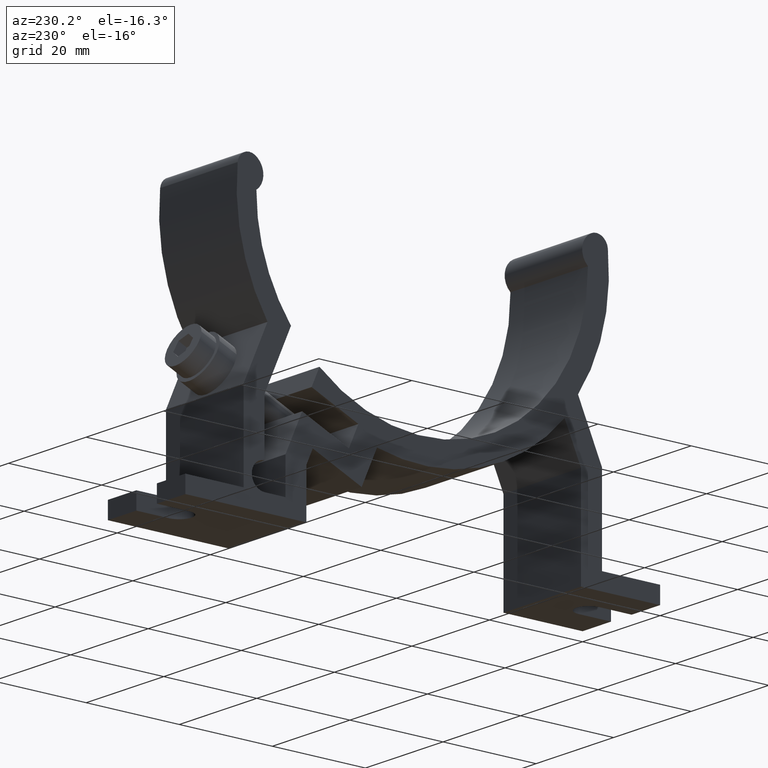
[diagram: clean part render]
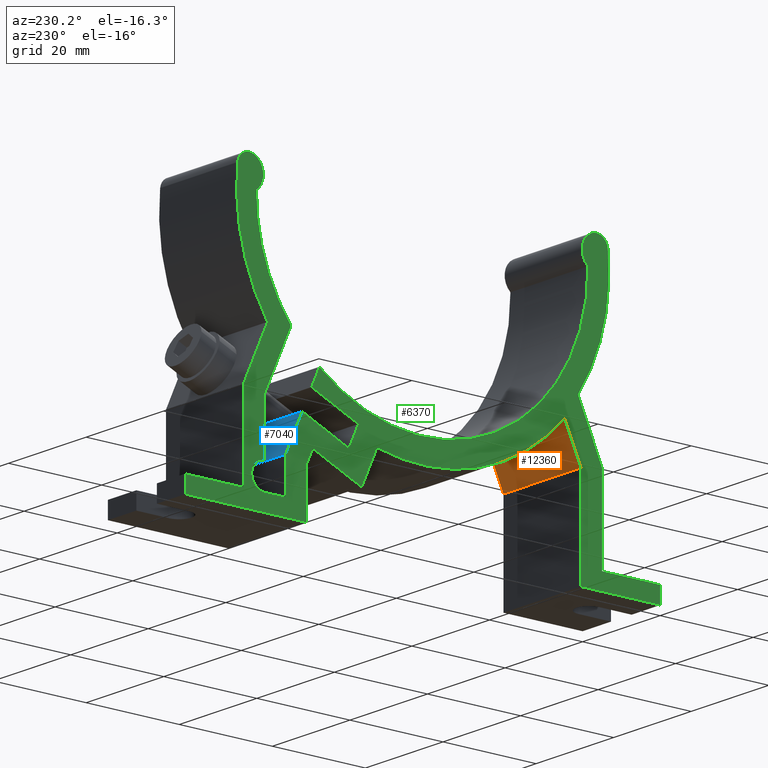
[diagram: same view with three faces highlighted in distinct colors, each labeled with its STEP entity id]
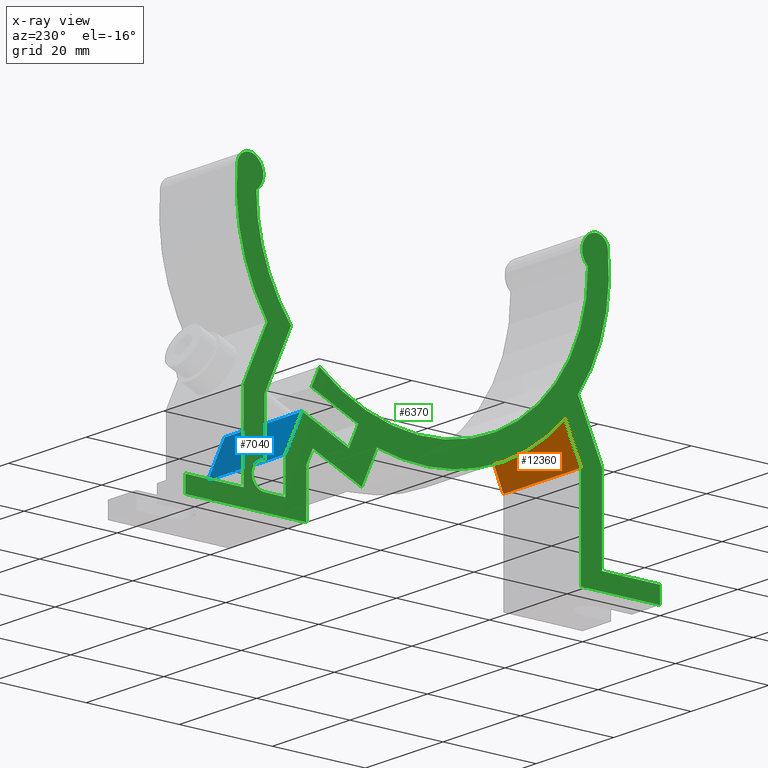
[diagram: x-ray of the same camera — body ghosted, the three highlighted faces saturated]
A machine part, auxiliary view with three faces highlighted in distinct colors.
The next image is the same camera in x-ray (body ghosted, the three faces saturated) — at least one of them is partly hidden behind the body in this view.
Their STEP definitions:

[orange] entity #12360 — the highlighted planar face has unit normal (0, -0.9135, 0.4067).
#4700=CARTESIAN_POINT('',(-34.,-34.5691636079813,0.1));
#4710=VERTEX_POINT('',#4700);
#4740=CARTESIAN_POINT('',(-18.6088167346028,0.,0.1));
#4750=DIRECTION('',(-0.4067366430758,-0.913545457642601,0.));
#4760=VECTOR('',#4750,1.);
#4770=LINE('',#4740,#4760);
#4780=CARTESIAN_POINT('',(-30.4816484383309,-26.6668166169492,0.1));
#4790=VERTEX_POINT('',#4780);
#4800=EDGE_CURVE('',#4790,#4710,#4770,.T.);
#7220=CARTESIAN_POINT('',(-34.,-34.5691636079813,20.1));
#7230=VERTEX_POINT('',#7220);
#7260=CARTESIAN_POINT('',(-34.,-34.5691636079813,0.));
#7270=DIRECTION('',(0.,0.,-1.));
#7280=VECTOR('',#7270,1.);
#7290=LINE('',#7260,#7280);
#7300=EDGE_CURVE('',#7230,#4710,#7290,.T.);
#9830=CARTESIAN_POINT('',(-30.4816484383309,-26.6668166169492,20.1));
#9840=VERTEX_POINT('',#9830);
#9870=CARTESIAN_POINT('',(-18.6088167346028,0.,20.1));
#9880=DIRECTION('',(0.4067366430758,0.913545457642601,0.));
#9890=VECTOR('',#9880,1.);
#9900=LINE('',#9870,#9890);
#9910=EDGE_CURVE('',#7230,#9840,#9900,.T.);
#11360=CARTESIAN_POINT('',(-30.4816484383309,-26.6668166169492,20.1));
#11370=DIRECTION('',(0.,0.,-1.));
#11380=VECTOR('',#11370,1.);
#11390=LINE('',#11360,#11380);
#11400=EDGE_CURVE('',#9840,#4790,#11390,.T.);
#12250=CARTESIAN_POINT('',(-34.,-34.5691636079813,20.1));
#12260=DIRECTION('',(-0.913545457642601,0.4067366430758,0.));
#12270=DIRECTION('',(-0.4067366430758,-0.913545457642601,0.));
#12280=AXIS2_PLACEMENT_3D('',#12250,#12260,#12270);
#12290=PLANE('',#12280);
#12300=ORIENTED_EDGE('',*,*,#7300,.T.);
#12310=ORIENTED_EDGE('',*,*,#9910,.F.);
#12320=ORIENTED_EDGE('',*,*,#11400,.F.);
#12330=ORIENTED_EDGE('',*,*,#4800,.F.);
#12340=EDGE_LOOP('',(#12330,#12320,#12310,#12300));
#12350=FACE_OUTER_BOUND('',#12340,.T.);
#12360=ADVANCED_FACE('',(#12350),#12290,.F.);

[blue] entity #7040 — the highlighted planar face has unit normal (0, -0.9135, -0.4067).
#3830=CARTESIAN_POINT('',(29.5,-44.1307448100062,20.1));
#3840=VERTEX_POINT('',#3830);
#3870=CARTESIAN_POINT('',(29.5,-44.1307448100062,0.));
#3880=DIRECTION('',(0.,0.,-1.));
#3890=VECTOR('',#3880,1.);
#3900=LINE('',#3870,#3890);
#3910=CARTESIAN_POINT('',(29.5,-44.1307448100062,0.1));
#3920=VERTEX_POINT('',#3910);
#3930=EDGE_CURVE('',#3840,#3920,#3900,.T.);
#6120=CARTESIAN_POINT('',(9.8517265065544,0.,0.1));
#6130=DIRECTION('',(0.406736643075801,-0.913545457642601,0.));
#6140=VECTOR('',#6130,1.);
#6150=LINE('',#6120,#6140);
#6160=CARTESIAN_POINT('',(25.9149530925807,-36.0785976197709,0.1));
#6170=VERTEX_POINT('',#6160);
#6180=EDGE_CURVE('',#6170,#3920,#6150,.T.);
#6770=CARTESIAN_POINT('',(29.5,-44.1307448100062,20.1));
#6780=DIRECTION('',(-0.913545457642601,-0.406736643075801,0.));
#6790=DIRECTION('',(0.406736643075801,-0.913545457642601,0.));
#6800=AXIS2_PLACEMENT_3D('',#6770,#6780,#6790);
#6810=PLANE('',#6800);
#6820=ORIENTED_EDGE('',*,*,#6180,.F.);
#6830=ORIENTED_EDGE('',*,*,#3930,.T.);
#6840=CARTESIAN_POINT('',(9.8517265065544,0.,20.1));
#6850=DIRECTION('',(-0.406736643075801,0.913545457642601,0.));
#6860=VECTOR('',#6850,1.);
#6870=LINE('',#6840,#6860);
#6880=CARTESIAN_POINT('',(25.9149530925807,-36.0785976197709,20.1));
#6890=VERTEX_POINT('',#6880);
#6900=EDGE_CURVE('',#3840,#6890,#6870,.T.);
#6910=ORIENTED_EDGE('',*,*,#6900,.F.);
#6920=CARTESIAN_POINT('',(25.9149530925807,-36.0785976197709,0.));
#6930=DIRECTION('',(0.,0.,-1.));
#6940=VECTOR('',#6930,1.);
#6950=LINE('',#6920,#6940);
#6960=CARTESIAN_POINT('',(25.9149530925808,-36.0785976197711,10.1));
#6970=VERTEX_POINT('',#6960);
#6980=EDGE_CURVE('',#6890,#6970,#6950,.T.);
#6990=ORIENTED_EDGE('',*,*,#6980,.F.);
#7000=EDGE_CURVE('',#6970,#6170,#6950,.T.);
#7010=ORIENTED_EDGE('',*,*,#7000,.F.);
#7020=EDGE_LOOP('',(#7010,#6990,#6910,#6830,#6820));
#7030=FACE_OUTER_BOUND('',#7020,.T.);
#7040=ADVANCED_FACE('',(#7030),#6810,.F.);

[green] entity #6370 — the highlighted planar face has unit normal (1, 0, 0).
#100=CARTESIAN_POINT('',(13.8322698431331,-35.9849734053917,0.1));
#110=VERTEX_POINT('',#100);
#410=CARTESIAN_POINT('',(23.8812698772017,-31.5108703315579,0.1));
#420=VERTEX_POINT('',#410);
#450=CARTESIAN_POINT('',(0.,-42.1434967224828,0.1));
#460=DIRECTION('',(-0.913545457642601,-0.406736643075801,0.));
#470=VECTOR('',#460,1.);
#480=LINE('',#450,#470);
#490=EDGE_CURVE('',#420,#110,#480,.T.);
#660=CARTESIAN_POINT('',(0.,0.,0.100000000000001));
#670=DIRECTION('',(0.,0.,1.));
#680=DIRECTION('',(-1.,0.,0.));
#690=AXIS2_PLACEMENT_3D('',#660,#670,#680);
#700=CIRCLE('',#690,35.5);
#710=CARTESIAN_POINT('',(-35.4978398082479,0.391623477293338,
0.100000000000001));
#720=VERTEX_POINT('',#710);
#730=CARTESIAN_POINT('',(22.189330721415,-27.7107127684524,
0.100000000000001));
#740=VERTEX_POINT('',#730);
#750=EDGE_CURVE('',#720,#740,#700,.T.);
#1210=CARTESIAN_POINT('',(15.8659530585121,-40.5527006936047,0.1));
#1220=VERTEX_POINT('',#1210);
#1320=CARTESIAN_POINT('',(-2.18927255701212,0.,0.1));
#1330=DIRECTION('',(0.406736643075801,-0.913545457642601,0.));
#1340=VECTOR('',#1330,1.);
#1350=LINE('',#1320,#1340);
#1360=EDGE_CURVE('',#110,#1220,#1350,.T.);
#1680=CARTESIAN_POINT('',(28.3218815459902,-21.8159007536911,0.1));
#1690=VERTEX_POINT('',#1680);
#1720=CARTESIAN_POINT('',(0.,0.,0.100000000000001));
#1730=DIRECTION('',(0.,0.,1.));
#1740=DIRECTION('',(-1.,0.,0.));
#1750=AXIS2_PLACEMENT_3D('',#1720,#1730,#1740);
#1760=CIRCLE('',#1750,35.75);
#1770=CARTESIAN_POINT('',(35.7494471602957,0.198815827407245,
0.100000000000001));
#1780=VERTEX_POINT('',#1770);
#1790=EDGE_CURVE('',#1690,#1780,#1760,.T.);
#2020=CARTESIAN_POINT('',(0.,-55.,0.1));
#2030=DIRECTION('',(-1.,-4.08170229641602E-16,0.));
#2040=VECTOR('',#2030,1.);
#2050=LINE('',#2020,#2040);
#2060=CARTESIAN_POINT('',(-34.,-55.,0.1));
#2070=VERTEX_POINT('',#2060);
#2080=CARTESIAN_POINT('',(-51.,-55.,0.1));
#2090=VERTEX_POINT('',#2080);
#2100=EDGE_CURVE('',#2070,#2090,#2050,.T.);
#2820=CARTESIAN_POINT('',(-37.7503348978928,3.07047880581078,
0.100000000000001));
#2830=DIRECTION('',(0.,0.,-1.));
#2840=DIRECTION('',(-1.,0.,0.));
#2850=AXIS2_PLACEMENT_3D('',#2820,#2830,#2840);
#2860=CIRCLE('',#2850,3.5);
#2870=CARTESIAN_POINT('',(-36.140869171415,6.17847173940845,
0.100000000000001));
#2880=VERTEX_POINT('',#2870);
#2890=EDGE_CURVE('',#2880,#720,#2860,.T.);
#3220=CARTESIAN_POINT('',(-7.66245394954238,0.,0.1));
#3230=DIRECTION('',(-0.406736643075801,0.913545457642601,0.));
#3240=VECTOR('',#3230,1.);
#3250=LINE('',#3220,#3240);
#3260=CARTESIAN_POINT('',(13.1285406641402,-46.6973384683754,0.1));
#3270=VERTEX_POINT('',#3260);
#3280=CARTESIAN_POINT('',(9.83009971049241,-39.2889187899308,0.1));
#3290=VERTEX_POINT('',#3280);
#3300=EDGE_CURVE('',#3270,#3290,#3250,.T.);
#3750=CARTESIAN_POINT('',(29.5,-51.5,0.1));
#3760=VERTEX_POINT('',#3750);
#3910=CARTESIAN_POINT('',(29.5,-44.1307448100062,0.1));
#3920=VERTEX_POINT('',#3910);
#3950=CARTESIAN_POINT('',(29.5,0.,0.1));
#3960=DIRECTION('',(0.,-1.,0.));
#3970=VECTOR('',#3960,1.);
#3980=LINE('',#3950,#3970);
#3990=EDGE_CURVE('',#3920,#3760,#3980,.T.);
#4110=CARTESIAN_POINT('',(0.,0.,0.1));
#4120=DIRECTION('',(0.,0.,1.));
#4130=DIRECTION('',(1.,0.,0.));
#4140=AXIS2_PLACEMENT_3D('',#4110,#4120,#4130);
#4150=PLANE('',#4140);
#4160=ORIENTED_EDGE('',*,*,#2890,.T.);
#4170=CARTESIAN_POINT('',(-37.2904875474706,3.95847678683868,
0.100000000000001));
#4180=DIRECTION('',(0.,0.,-1.));
#4190=DIRECTION('',(-0.994413001265881,0.105559380982378,0.));
#4200=AXIS2_PLACEMENT_3D('',#4170,#4180,#4190);
#4210=CIRCLE('',#4200,2.49999999999999);
#4220=CARTESIAN_POINT('',(-39.7765200506353,4.22237523929462,0.1));
#4230=VERTEX_POINT('',#4220);
#4240=EDGE_CURVE('',#4230,#2880,#4210,.T.);
#4250=ORIENTED_EDGE('',*,*,#4240,.T.);
#4260=CARTESIAN_POINT('',(0.,0.,0.100000000000001));
#4270=DIRECTION('',(0.,0.,-1.));
#4280=DIRECTION('',(-1.,0.,0.));
#4290=AXIS2_PLACEMENT_3D('',#4260,#4270,#4280);
#4300=CIRCLE('',#4290,40.);
#4310=CARTESIAN_POINT('',(-33.3606779955049,-22.0695528654351,0.1));
#4320=VERTEX_POINT('',#4310);
#4330=EDGE_CURVE('',#4320,#4230,#4300,.T.);
#4340=ORIENTED_EDGE('',*,*,#4330,.T.);
#4350=CARTESIAN_POINT('',(-23.53467998788,0.,0.1));
#4360=DIRECTION('',(0.4067366430758,0.913545457642601,0.));
#4370=VECTOR('',#4360,1.);
#4380=LINE('',#4350,#4370);
#4390=CARTESIAN_POINT('',(-38.5,-33.6126590804662,0.1));
#4400=VERTEX_POINT('',#4390);
#4410=EDGE_CURVE('',#4400,#4320,#4380,.T.);
#4420=ORIENTED_EDGE('',*,*,#4410,.T.);
#4430=CARTESIAN_POINT('',(-38.5,0.,0.1));
#4440=DIRECTION('',(0.,1.,0.));
#4450=VECTOR('',#4440,1.);
#4460=LINE('',#4430,#4450);
#4470=CARTESIAN_POINT('',(-38.5,-51.5,0.1));
#4480=VERTEX_POINT('',#4470);
#4490=EDGE_CURVE('',#4480,#4400,#4460,.T.);
#4500=ORIENTED_EDGE('',*,*,#4490,.T.);
#4510=CARTESIAN_POINT('',(0.,-51.5,0.1));
#4520=DIRECTION('',(1.,5.55111512312578E-16,0.));
#4530=VECTOR('',#4520,1.);
#4540=LINE('',#4510,#4530);
#4550=CARTESIAN_POINT('',(-51.,-51.5,0.1));
#4560=VERTEX_POINT('',#4550);
#4570=EDGE_CURVE('',#4560,#4480,#4540,.T.);
#4580=ORIENTED_EDGE('',*,*,#4570,.T.);
#4590=CARTESIAN_POINT('',(-51.,0.,0.1));
#4600=DIRECTION('',(0.,1.,0.));
#4610=VECTOR('',#4600,1.);
#4620=LINE('',#4590,#4610);
#4630=EDGE_CURVE('',#2090,#4560,#4620,.T.);
#4640=ORIENTED_EDGE('',*,*,#4630,.T.);
#4650=ORIENTED_EDGE('',*,*,#2100,.T.);
#4660=CARTESIAN_POINT('',(-34.,0.,0.1));
#4670=DIRECTION('',(-3.39628479753179E-16,-1.,0.));
#4680=VECTOR('',#4670,1.);
#4690=LINE('',#4660,#4680);
#4700=CARTESIAN_POINT('',(-34.,-34.5691636079813,0.1));
#4710=VERTEX_POINT('',#4700);
#4720=EDGE_CURVE('',#4710,#2070,#4690,.T.);
#4730=ORIENTED_EDGE('',*,*,#4720,.T.);
#4740=CARTESIAN_POINT('',(-18.6088167346028,0.,0.1));
#4750=DIRECTION('',(-0.4067366430758,-0.913545457642601,0.));
#4760=VECTOR('',#4750,1.);
#4770=LINE('',#4740,#4760);
#4780=CARTESIAN_POINT('',(-30.4816484383309,-26.6668166169492,0.1));
#4790=VERTEX_POINT('',#4780);
#4800=EDGE_CURVE('',#4790,#4710,#4770,.T.);
#4810=ORIENTED_EDGE('',*,*,#4800,.T.);
#4820=CARTESIAN_POINT('',(0.,0.,0.100000000000001));
#4830=DIRECTION('',(0.,0.,-1.));
#4840=DIRECTION('',(-1.,0.,0.));
#4850=AXIS2_PLACEMENT_3D('',#4820,#4830,#4840);
#4860=CIRCLE('',#4850,40.5);
#4870=EDGE_CURVE('',#3290,#4790,#4860,.T.);
#4880=ORIENTED_EDGE('',*,*,#4870,.T.);
#4890=ORIENTED_EDGE('',*,*,#3300,.T.);
#4900=CARTESIAN_POINT('',(0.,-52.5425413682902,0.1));
#4910=DIRECTION('',(-0.913545457642601,-0.4067366430758,0.));
#4920=VECTOR('',#4910,1.);
#4930=LINE('',#4900,#4920);
#4940=CARTESIAN_POINT('',(23.6343134270301,-42.0198670730037,0.1));
#4950=VERTEX_POINT('',#4940);
#4960=EDGE_CURVE('',#4950,#3270,#4930,.T.);
#4970=ORIENTED_EDGE('',*,*,#4960,.T.);
#4980=CARTESIAN_POINT('',(4.92586325327718,0.,0.1));
#4990=DIRECTION('',(-0.406736643075801,0.913545457642601,0.));
#5000=VECTOR('',#4990,1.);
#5010=LINE('',#4980,#5000);
#5020=CARTESIAN_POINT('',(25.,-45.0872493375214,0.1));
#5030=VERTEX_POINT('',#5020);
#5040=EDGE_CURVE('',#5030,#4950,#5010,.T.);
#5050=ORIENTED_EDGE('',*,*,#5040,.T.);
#5060=CARTESIAN_POINT('',(25.,0.,0.1));
#5070=DIRECTION('',(0.,1.,0.));
#5080=VECTOR('',#5070,1.);
#5090=LINE('',#5060,#5080);
#5100=CARTESIAN_POINT('',(25.,-55.,0.1));
#5110=VERTEX_POINT('',#5100);
#5120=EDGE_CURVE('',#5110,#5030,#5090,.T.);
#5130=ORIENTED_EDGE('',*,*,#5120,.T.);
#5140=CARTESIAN_POINT('',(0.,-55.,0.1));
#5150=DIRECTION('',(-1.,5.33761069531325E-16,0.));
#5160=VECTOR('',#5150,1.);
#5170=LINE('',#5140,#5160);
#5180=CARTESIAN_POINT('',(51.,-55.,0.1));
#5190=VERTEX_POINT('',#5180);
#5200=EDGE_CURVE('',#5190,#5110,#5170,.T.);
#5210=ORIENTED_EDGE('',*,*,#5200,.T.);
#5220=CARTESIAN_POINT('',(51.,0.,0.1));
#5230=DIRECTION('',(0.,-1.,0.));
#5240=VECTOR('',#5230,1.);
#5250=LINE('',#5220,#5240);
#5260=CARTESIAN_POINT('',(51.,-51.5,0.1));
#5270=VERTEX_POINT('',#5260);
#5280=EDGE_CURVE('',#5270,#5190,#5250,.T.);
#5290=ORIENTED_EDGE('',*,*,#5280,.T.);
#5300=CARTESIAN_POINT('',(0.,-51.5,0.1));
#5310=DIRECTION('',(1.,0.,0.));
#5320=VECTOR('',#5310,1.);
#5330=LINE('',#5300,#5320);
#5340=CARTESIAN_POINT('',(38.5,-51.5,0.1));
#5350=VERTEX_POINT('',#5340);
#5360=EDGE_CURVE('',#5350,#5270,#5330,.T.);
#5370=ORIENTED_EDGE('',*,*,#5360,.T.);
#5380=CARTESIAN_POINT('',(38.5,0.,0.1));
#5390=DIRECTION('',(0.,-1.,0.));
#5400=VECTOR('',#5390,1.);
#5410=LINE('',#5380,#5400);
#5420=CARTESIAN_POINT('',(38.5,-33.6126590804662,0.1));
#5430=VERTEX_POINT('',#5420);
#5440=EDGE_CURVE('',#5430,#5350,#5410,.T.);
#5450=ORIENTED_EDGE('',*,*,#5440,.T.);
#5460=CARTESIAN_POINT('',(23.53467998788,0.,0.1));
#5470=DIRECTION('',(0.4067366430758,-0.913545457642601,0.));
#5480=VECTOR('',#5470,1.);
#5490=LINE('',#5460,#5480);
#5500=CARTESIAN_POINT('',(33.3606779955049,-22.0695528654351,
0.100000000000001));
#5510=VERTEX_POINT('',#5500);
#5520=EDGE_CURVE('',#5510,#5430,#5490,.T.);
#5530=ORIENTED_EDGE('',*,*,#5520,.T.);
#5540=CARTESIAN_POINT('',(0.,0.,0.100000000000001));
#5550=DIRECTION('',(0.,0.,-1.));
#5560=DIRECTION('',(-1.,0.,0.));
#5570=AXIS2_PLACEMENT_3D('',#5540,#5550,#5560);
#5580=CIRCLE('',#5570,40.);
#5590=CARTESIAN_POINT('',(39.7765200506353,4.22237523929457,
0.100000000000001));
#5600=VERTEX_POINT('',#5590);
#5610=EDGE_CURVE('',#5600,#5510,#5580,.T.);
#5620=ORIENTED_EDGE('',*,*,#5610,.T.);
#5630=CARTESIAN_POINT('',(37.2904875474706,3.95847678683868,
0.100000000000001));
#5640=DIRECTION('',(0.,0.,-1.));
#5650=DIRECTION('',(-0.459847350422298,0.887997981027881,0.));
#5660=AXIS2_PLACEMENT_3D('',#5630,#5640,#5650);
#5670=CIRCLE('',#5660,2.49999999999999);
#5680=CARTESIAN_POINT('',(36.140869171415,6.17847173940845,
0.100000000000001));
#5690=VERTEX_POINT('',#5680);
#5700=EDGE_CURVE('',#5690,#5600,#5670,.T.);
#5710=ORIENTED_EDGE('',*,*,#5700,.T.);
#5720=CARTESIAN_POINT('',(37.7503348978928,3.07047880581078,
0.100000000000001));
#5730=DIRECTION('',(0.,0.,-1.));
#5740=DIRECTION('',(-1.,0.,0.));
#5750=AXIS2_PLACEMENT_3D('',#5720,#5730,#5740);
#5760=CIRCLE('',#5750,3.5);
#5770=EDGE_CURVE('',#1780,#5690,#5760,.T.);
#5780=ORIENTED_EDGE('',*,*,#5770,.T.);
#5790=ORIENTED_EDGE('',*,*,#1790,.T.);
#5800=CARTESIAN_POINT('',(18.6088167346028,0.,0.1));
#5810=DIRECTION('',(-0.4067366430758,0.913545457642601,0.));
#5820=VECTOR('',#5810,1.);
#5830=LINE('',#5800,#5820);
#5840=CARTESIAN_POINT('',(34.,-34.5691636079813,0.1));
#5850=VERTEX_POINT('',#5840);
#5860=EDGE_CURVE('',#5850,#1690,#5830,.T.);
#5870=ORIENTED_EDGE('',*,*,#5860,.T.);
#5880=CARTESIAN_POINT('',(34.,0.,0.1));
#5890=DIRECTION('',(0.,1.,0.));
#5900=VECTOR('',#5890,1.);
#5910=LINE('',#5880,#5900);
#5920=CARTESIAN_POINT('',(34.,-46.,0.1));
#5930=VERTEX_POINT('',#5920);
#5940=EDGE_CURVE('',#5930,#5850,#5910,.T.);
#5950=ORIENTED_EDGE('',*,*,#5940,.T.);
#5960=CARTESIAN_POINT('',(34.,-48.75,0.100000000000001));
#5970=DIRECTION('',(0.,0.,1.));
#5980=DIRECTION('',(-1.,0.,0.));
#5990=AXIS2_PLACEMENT_3D('',#5960,#5970,#5980);
#6000=CIRCLE('',#5990,2.75);
#6010=CARTESIAN_POINT('',(34.,-51.5,0.1));
#6020=VERTEX_POINT('',#6010);
#6030=EDGE_CURVE('',#6020,#5930,#6000,.T.);
#6040=ORIENTED_EDGE('',*,*,#6030,.T.);
#6050=CARTESIAN_POINT('',(0.,-51.5,0.1));
#6060=DIRECTION('',(1.,0.,0.));
#6070=VECTOR('',#6060,1.);
#6080=LINE('',#6050,#6070);
#6090=EDGE_CURVE('',#3760,#6020,#6080,.T.);
#6100=ORIENTED_EDGE('',*,*,#6090,.T.);
#6110=ORIENTED_EDGE('',*,*,#3990,.T.);
#6120=CARTESIAN_POINT('',(9.8517265065544,0.,0.1));
#6130=DIRECTION('',(0.406736643075801,-0.913545457642601,0.));
#6140=VECTOR('',#6130,1.);
#6150=LINE('',#6120,#6140);
#6160=CARTESIAN_POINT('',(25.9149530925807,-36.0785976197709,0.1));
#6170=VERTEX_POINT('',#6160);
#6180=EDGE_CURVE('',#6170,#3920,#6150,.T.);
#6190=ORIENTED_EDGE('',*,*,#6180,.T.);
#6200=CARTESIAN_POINT('',(0.,-47.6166781150129,0.1));
#6210=DIRECTION('',(-0.913545457642602,-0.406736643075797,0.));
#6220=VECTOR('',#6210,1.);
#6230=LINE('',#6200,#6220);
#6240=EDGE_CURVE('',#6170,#1220,#6230,.T.);
#6250=ORIENTED_EDGE('',*,*,#6240,.F.);
#6260=ORIENTED_EDGE('',*,*,#1360,.T.);
#6270=ORIENTED_EDGE('',*,*,#490,.T.);
#6280=CARTESIAN_POINT('',(9.85172650655443,0.,0.1));
#6290=DIRECTION('',(0.4067366430758,-0.913545457642601,0.));
#6300=VECTOR('',#6290,1.);
#6310=LINE('',#6280,#6300);
#6320=EDGE_CURVE('',#740,#420,#6310,.T.);
#6330=ORIENTED_EDGE('',*,*,#6320,.T.);
#6340=ORIENTED_EDGE('',*,*,#750,.T.);
#6350=EDGE_LOOP('',(#6340,#6330,#6270,#6260,#6250,#6190,#6110,#6100,
#6040,#5950,#5870,#5790,#5780,#5710,#5620,#5530,#5450,#5370,#5290,#5210,
#5130,#5050,#4970,#4890,#4880,#4810,#4730,#4650,#4640,#4580,#4500,#4420,
#4340,#4250,#4160));
#6360=FACE_OUTER_BOUND('',#6350,.T.);
#6370=ADVANCED_FACE('',(#6360),#4150,.F.);